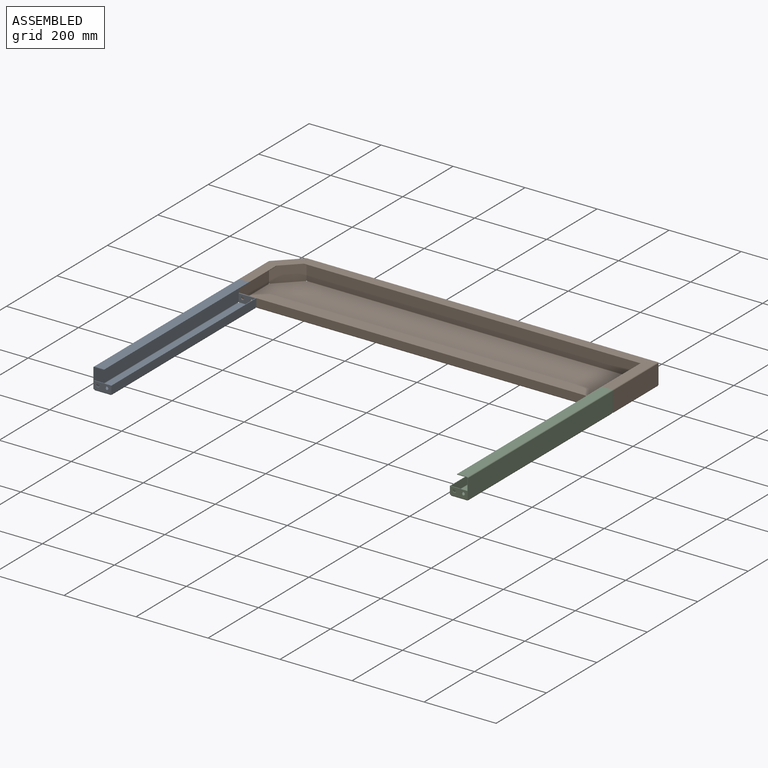
[diagram: assembled view]
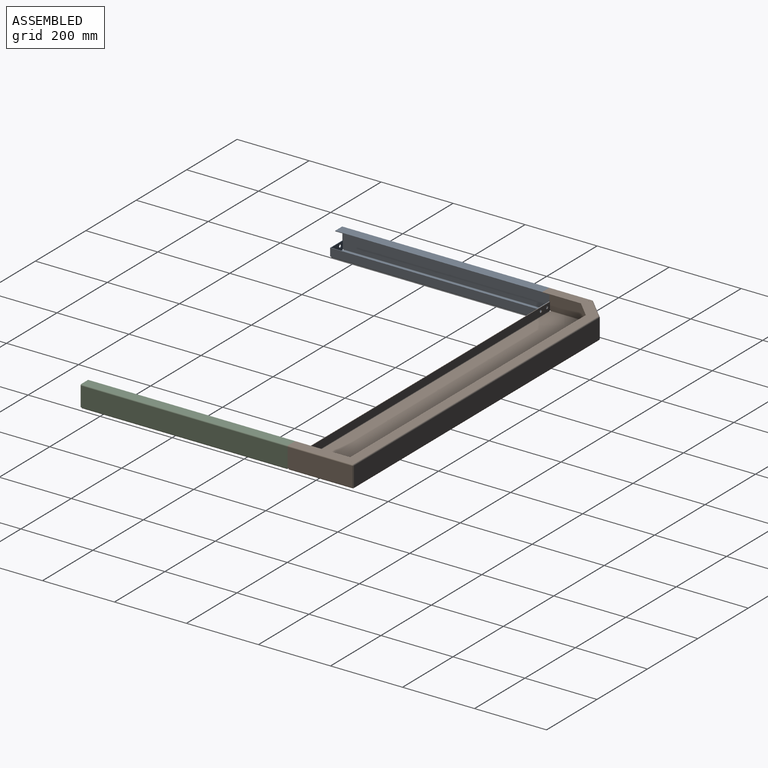
[diagram: assembled view, second angle]
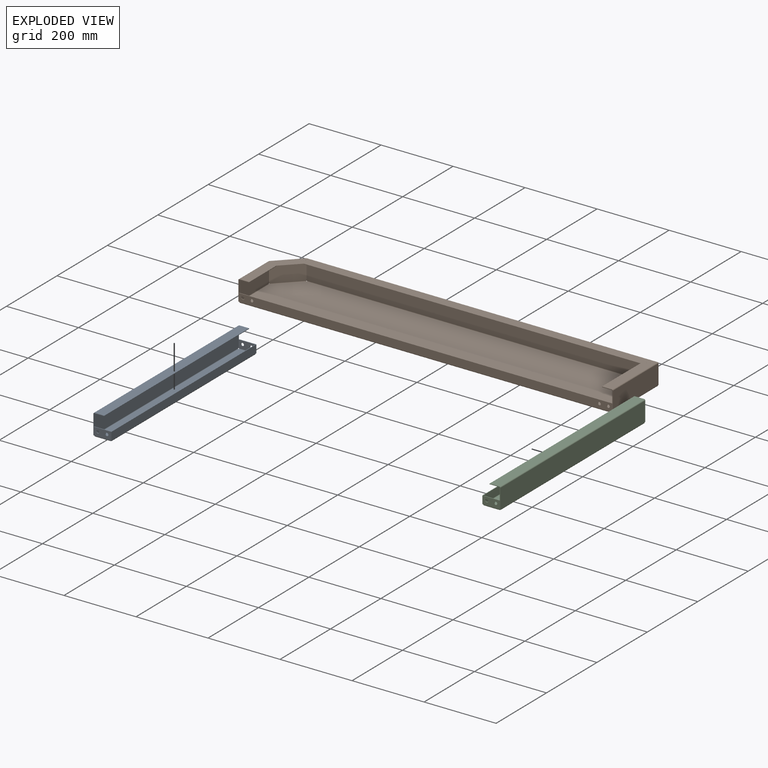
[diagram: exploded view]
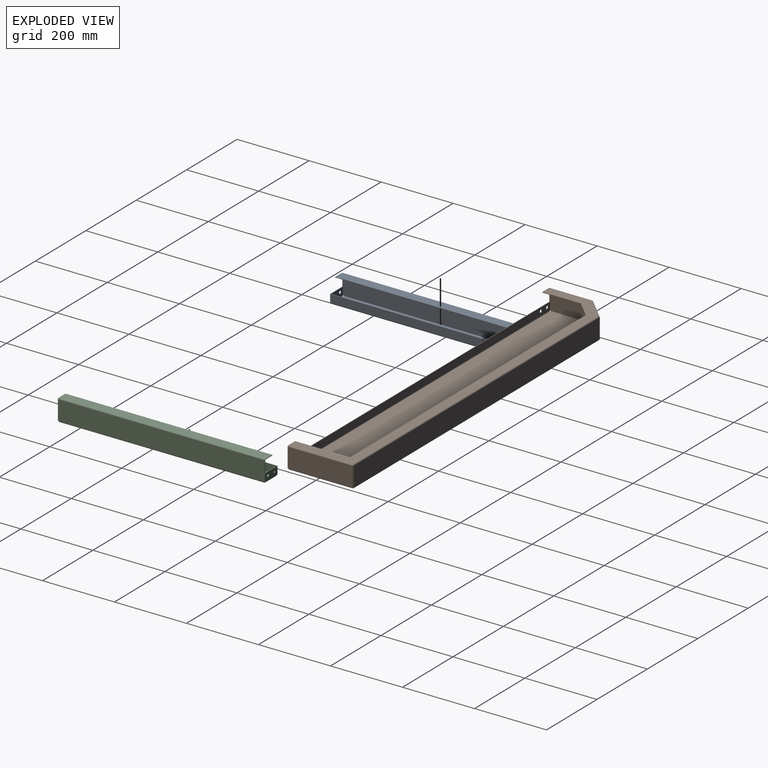
[diagram: exploded view, second angle]
ASSEMBLY  parts=3 mates=6
PART A: 58 faces, bbox 50x575x60 mm
  f0: plane 3x1.5mm, normal (0,0,-1), area 4.5mm2, adj f1,f5,f6,f55
  f1: plane 22x1.5mm, normal (0,1,0), area 33mm2, adj f0,f4,f5,f6
  f2: plane 3x1.5mm, normal (0,0,-1), area 4.5mm2, adj f3,f5,f6,f54
  f3: plane 22x1.5mm, normal (0,-1,0), area 33mm2, adj f2,f4,f5,f6
  f4: plane 575x1.5mm, normal (0,0,1), area 862.5mm2, adj f1,f3,f5,f6
  f5: plane 575x22mm, normal (-1,0,0), area 12650mm2, adj f0,f1,f2,f3,f4,f56
  f6: plane 575x22mm, normal (1,0,0), area 12650mm2, adj f0,f1,f2,f3,f4,f57
  f7: plane 569x44mm, normal (0,0,-1), area 25036mm2, adj f26,f39,f52,f56
  f8: plane 569x44mm, normal (0,0,1), area 25036mm2, adj f27,f40,f53,f57
  f9: plane 3x1.5mm, normal (0,0,-1), area 4.5mm2, adj f11,f13,f14,f24
  f10: plane 54x1.5mm, normal (0,1,0), area 81mm2, adj f12,f13,f14,f21
  f11: plane 54x1.5mm, normal (0,-1,0), area 81mm2, adj f9,f13,f14,f20
  f12: plane 3x1.5mm, normal (0,0,-1), area 4.5mm2, adj f10,f13,f14,f25
  f13: plane 575x54mm, normal (1,0,0), area 31050mm2, adj f9,f10,f11,f12,f22,f26
  f14: plane 575x54mm, normal (-1,0,0), area 31050mm2, adj f9,f10,f11,f12,f23,f27
  f15: plane 27x1.5mm, normal (0,1,0), area 40.5mm2, adj f16,f18,f19,f21
  f16: plane 575x1.5mm, normal (-1,0,0), area 862.5mm2, adj f15,f17,f18,f19
  f17: plane 27x1.5mm, normal (0,-1,0), area 40.5mm2, adj f16,f18,f19,f20
  f18: plane 575x27mm, normal (0,0,1), area 15525mm2, adj f15,f16,f17,f22
  f19: plane 575x27mm, normal (0,0,-1), area 15525mm2, adj f15,f16,f17,f23
  f20: plane 3x3mm, normal (0,-1,0), area 5.3mm2, adj f11,f17,f22,f23
  f21: plane 3x3mm, normal (0,1,0), area 5.3mm2, adj f10,f15,f22,f23
  f22: cylinder r=3mm len=575mm, axis (0,-1,0), area 2709.6mm2, adj f13,f18,f20,f21
  f23: cylinder r=1.5mm len=575mm, axis (0,-1,0), area 1354.8mm2, adj f14,f19,f20,f21
  f24: plane 3x3mm, normal (0,-1,0), area 5.3mm2, adj f9,f26,f27,f50
  f25: plane 3x3mm, normal (0,1,0), area 5.3mm2, adj f12,f26,f27,f37
  f26: cylinder r=3mm len=569mm, axis (0,-1,0), area 2681.3mm2, adj f7,f13,f24,f25
  f27: cylinder r=1.5mm len=569mm, axis (0,-1,0), area 1340.7mm2, adj f8,f14,f24,f25
  f28: plane 1.5x1.2mm, normal (0,0,-1), area 1.8mm2, adj f30,f35,f36,f37
  f29: plane 46.4x1.5mm, normal (0,0,1), area 69.6mm2, adj f30,f34,f35,f36
  f30: plane 22x1.5mm, normal (1,0,0), area 33mm2, adj f28,f29,f35,f36
  f31: plane 1.5x1.2mm, normal (0,0,-1), area 1.8mm2, adj f34,f35,f36,f38
  f32: cylinder r=4mm len=8mm, axis (0,1,0), area 37.7mm2, adj f35,f36
  f33: cylinder r=4mm len=8mm, axis (0,1,0), area 37.7mm2, adj f35,f36
  f34: plane 22x1.5mm, normal (-1,0,0), area 33mm2, adj f29,f31,f35,f36
  f35: plane 46.4x22mm, normal (0,1,0), area 920.3mm2, adj f28,f29,f30,f31,f32,f33,f34,f39
  f36: plane 46.4x22mm, normal (0,-1,0), area 920.3mm2, adj f28,f29,f30,f31,f32,f33,f34,f40
  f37: plane 3x3mm, normal (1,0,0), area 5.3mm2, adj f25,f28,f39,f40
  f38: plane 3x3mm, normal (-1,0,0), area 5.3mm2, adj f31,f39,f40,f55
  f39: cylinder r=3mm len=44mm, axis (1,0,0), area 207.3mm2, adj f7,f35,f37,f38
  f40: cylinder r=1.5mm len=44mm, axis (1,0,0), area 103.7mm2, adj f8,f36,f37,f38
  f41: plane 1.5x1.2mm, normal (0,0,-1), area 1.8mm2, adj f43,f48,f49,f51
  f42: plane 46.4x1.5mm, normal (0,0,1), area 69.6mm2, adj f43,f47,f48,f49
  f43: plane 22x1.5mm, normal (-1,0,0), area 33mm2, adj f41,f42,f48,f49
  f44: plane 1.5x1.2mm, normal (0,0,-1), area 1.8mm2, adj f47,f48,f49,f50
  f45: cylinder r=4mm len=8mm, axis (0,-1,0), area 37.7mm2, adj f48,f49
  f46: cylinder r=4mm len=8mm, axis (0,-1,0), area 37.7mm2, adj f48,f49
  f47: plane 22x1.5mm, normal (1,0,0), area 33mm2, adj f42,f44,f48,f49
  f48: plane 46.4x22mm, normal (0,-1,0), area 920.3mm2, adj f41,f42,f43,f44,f45,f46,f47,f52
  f49: plane 46.4x22mm, normal (0,1,0), area 920.3mm2, adj f41,f42,f43,f44,f45,f46,f47,f53
  f50: plane 3x3mm, normal (1,0,0), area 5.3mm2, adj f24,f44,f52,f53
  f51: plane 3x3mm, normal (-1,0,0), area 5.3mm2, adj f41,f52,f53,f54
  f52: cylinder r=3mm len=44mm, axis (1,0,0), area 207.3mm2, adj f7,f48,f50,f51
  f53: cylinder r=1.5mm len=44mm, axis (1,0,0), area 103.7mm2, adj f8,f49,f50,f51
  f54: plane 3x3mm, normal (0,-1,0), area 5.3mm2, adj f2,f51,f56,f57
  f55: plane 3x3mm, normal (0,1,0), area 5.3mm2, adj f0,f38,f56,f57
  f56: cylinder r=3mm len=569mm, axis (0,-1,0), area 2681.3mm2, adj f5,f7,f54,f55
  f57: cylinder r=1.5mm len=569mm, axis (0,-1,0), area 1340.7mm2, adj f6,f8,f54,f55
PART B: 99 faces, bbox 1040x182.5x60 mm
  f0: plane 1034x176.5mm, normal (0,0,-1), area 180662.2mm2, adj f13,f21,f31,f73,f97
  f1: plane 1034x176.5mm, normal (0,0,1), area 180662.2mm2, adj f14,f22,f32,f74,f98
  f2: plane 1.5x0.61mm, normal (0,0,-1), area 0.9mm2, adj f5,f9,f10,f12
  f3: plane 1.5x0.02mm, normal (0,0,-1), area 0mm2, adj f4,f8,f9,f10
  f4: plane 32x1.5mm, normal (0,-1,0), area 48mm2, adj f3,f9,f10,f16
  f5: plane 54x1.5mm, normal (0,1,0), area 81mm2, adj f2,f9,f10,f15
  f6: plane 1.5x1.5mm, normal (0,0,-1), area 2.3mm2, adj f7,f9,f10,f11
  f7: plane 1.5x1.48mm, normal (0,0,-1), area 2.2mm2, adj f6,f8,f9,f10
  f8: plane 22x1.5mm, normal (0,-1,0), area 33mm2, adj f3,f7,f9,f10
  f9: plane 119.47x54mm, normal (-1,0,0), area 6450.8mm2, adj f2,f3,f4,f5,f6,f7,f8,f13
  f10: plane 119.47x54mm, normal (1,0,0), area 6450.8mm2, adj f2,f3,f4,f5,f6,f7,f8,f14
  f11: plane 3x3mm, normal (0,-1,0), area 5.3mm2, adj f6,f13,f14,f96
  f12: plane 3x3mm, normal (0,1,0), area 5.3mm2, adj f2,f13,f14,f19
  f13: cylinder r=3mm len=115.86mm, axis (0,-1,0), area 546mm2, adj f0,f9,f11,f12
  f14: cylinder r=1.5mm len=115.86mm, axis (0,-1,0), area 273mm2, adj f1,f10,f11,f12
  f15: bspline ~3x3mm, area 5.4mm2, adj f5,f17,f18,f34
  f16: bspline ~3x3mm, area 5.3mm2, adj f4,f17,f18,f35
  f17: cylinder r=3mm len=119.47mm, axis (0,1,0), area 561.9mm2, adj f9,f15,f16,f36
  f18: cylinder r=1.5mm len=119.47mm, axis (0,1,0), area 280.9mm2, adj f10,f15,f16,f37
  f19: plane 3x2.12mm, normal (-0.71,-0.71,0), area 5.3mm2, adj f12,f21,f22,f25
  f20: plane 3x2.12mm, normal (0.71,0.71,0), area 5.3mm2, adj f21,f22,f23,f71
  f21: cylinder r=3mm len=62.76mm, axis (-0.71,-0.71,0), area 404.1mm2, adj f0,f19,f20,f27
  f22: cylinder r=1.5mm len=61.7mm, axis (-0.71,-0.71,0), area 202.1mm2, adj f1,f19,f20,f28
  f23: plane 1.49x1.49mm, normal (0,0,-1), area 0.9mm2, adj f20,f24,f27,f28
  f24: plane 54x1.06mm, normal (0.71,0.71,0), area 81mm2, adj f23,f27,f28,f38
  f25: plane 1.49x1.49mm, normal (0,0,-1), area 0.9mm2, adj f19,f26,f27,f28
  f26: plane 54x1.06mm, normal (-0.71,-0.71,0), area 81mm2, adj f25,f27,f28,f39
  f27: plane 61.5x61.5mm, normal (-0.71,0.71,0), area 4697mm2, adj f21,f23,f24,f25,f26,f40
  f28: plane 61.5x61.5mm, normal (0.71,-0.71,0), area 4697mm2, adj f22,f23,f24,f25,f26,f41
  f29: plane 3x3mm, normal (0,1,0), area 5.3mm2, adj f31,f32,f48,f72
  f30: plane 3x3mm, normal (0,-1,0), area 5.3mm2, adj f31,f32,f42,f95
  f31: cylinder r=3mm len=176.5mm, axis (0,1,0), area 831.7mm2, adj f0,f29,f30,f49
  f32: cylinder r=1.5mm len=176.5mm, axis (0,1,0), area 415.9mm2, adj f1,f29,f30,f50
  f33: plane 107.64x1.5mm, normal (1,0,0), area 161.5mm2, adj f34,f35,f36,f37
  f34: plane 27x11.18mm, normal (0.38,0.92,0), area 43.8mm2, adj f15,f33,f36,f37
  f35: plane 27x1.5mm, normal (0,-1,0), area 40.5mm2, adj f16,f33,f36,f37
  f36: plane 118.83x27mm, normal (0,0,1), area 3057.3mm2, adj f17,f33,f34,f35
  f37: plane 118.83x27mm, normal (0,0,-1), area 3057.3mm2, adj f18,f33,f34,f35
  f38: bspline ~3x2.56mm, area 5.4mm2, adj f24,f40,f41,f52
  f39: bspline ~3x2.56mm, area 5.4mm2, adj f26,f40,f41,f53
  f40: cylinder r=3mm len=63.63mm, axis (0.71,0.71,0), area 407mm2, adj f27,f38,f39,f54
  f41: cylinder r=1.5mm len=62.57mm, axis (0.71,0.71,0), area 203.5mm2, adj f28,f38,f39,f55
  f42: plane 1.5x1.5mm, normal (0,0,-1), area 2.3mm2, adj f30,f47,f49,f50
  f43: plane 54x1.5mm, normal (0,1,0), area 81mm2, adj f48,f49,f50,f57
  f44: plane 32x1.5mm, normal (0,-1,0), area 48mm2, adj f45,f49,f50,f56
  f45: plane 1.5x0.02mm, normal (0,0,-1), area 0mm2, adj f44,f46,f49,f50
  f46: plane 22x1.5mm, normal (0,-1,0), area 33mm2, adj f45,f47,f49,f50
  f47: plane 1.5x1.48mm, normal (0,0,-1), area 2.2mm2, adj f42,f46,f49,f50
  f48: plane 1.5x1.48mm, normal (0,0,-1), area 2.2mm2, adj f29,f43,f49,f50
  f49: plane 180.98x54mm, normal (1,0,0), area 9772.5mm2, adj f31,f42,f43,f44,f45,f46,f47,f48
  f50: plane 180.98x54mm, normal (-1,0,0), area 9772.5mm2, adj f32,f42,f43,f44,f45,f46,f47,f48
  f51: plane 44.81x44.81mm, normal (0.71,-0.71,0), area 95.1mm2, adj f52,f53,f54,f55
  f52: plane 27x11.18mm, normal (0.92,0.38,0), area 43.8mm2, adj f38,f51,f54,f55
  f53: plane 27x11.18mm, normal (-0.38,-0.92,0), area 43.8mm2, adj f39,f51,f54,f55
  f54: plane 71.81x71.81mm, normal (0,0,1), area 2013mm2, adj f40,f51,f52,f53
  f55: plane 71.81x71.81mm, normal (0,0,-1), area 2013mm2, adj f41,f51,f52,f53
  f56: bspline ~3x3mm, area 5.3mm2, adj f44,f58,f59,f61
  f57: bspline ~3x3mm, area 5.9mm2, adj f43,f58,f59,f62
  f58: cylinder r=3mm len=180.98mm, axis (0,-1,0), area 850.2mm2, adj f49,f56,f57,f63
  f59: cylinder r=1.5mm len=180.98mm, axis (0,-1,0), area 425.1mm2, adj f50,f56,f57,f64
  f60: plane 152.47x1.5mm, normal (-1,0,0), area 228.7mm2, adj f61,f62,f63,f64
  f61: plane 27x1.5mm, normal (0,-1,0), area 40.5mm2, adj f56,f60,f63,f64
  f62: plane 27x27mm, normal (-0.71,0.71,0), area 57.3mm2, adj f57,f60,f63,f64
  f63: plane 179.47x27mm, normal (0,0,1), area 4481.1mm2, adj f58,f60,f61,f62
  f64: plane 179.47x27mm, normal (0,0,-1), area 4481.1mm2, adj f59,f60,f61,f62
  f65: plane 1.5x1.48mm, normal (0,0,-1), area 2.2mm2, adj f66,f69,f70,f72
  f66: plane 54x1.5mm, normal (1,0,0), area 81mm2, adj f65,f69,f70,f75
  f67: plane 1.5x0.61mm, normal (0,0,-1), area 0.9mm2, adj f68,f69,f70,f71
  f68: plane 54x1.5mm, normal (-1,0,0), area 81mm2, adj f67,f69,f70,f76
  f69: plane 975.45x54mm, normal (0,1,0), area 52674.1mm2, adj f65,f66,f67,f68,f73,f77
  f70: plane 975.45x54mm, normal (0,-1,0), area 52674.1mm2, adj f65,f66,f67,f68,f74,f78
  f71: plane 3x3mm, normal (-1,0,0), area 5.3mm2, adj f20,f67,f73,f74
  f72: plane 3x3mm, normal (1,0,0), area 5.3mm2, adj f29,f65,f73,f74
  f73: cylinder r=3mm len=973.36mm, axis (-1,0,0), area 4586.8mm2, adj f0,f69,f71,f72
  f74: cylinder r=1.5mm len=973.36mm, axis (-1,0,0), area 2293.4mm2, adj f1,f70,f71,f72
  f75: bspline ~3x3mm, area 5.9mm2, adj f66,f77,f78,f80
  f76: bspline ~3x3mm, area 5.4mm2, adj f68,f77,f78,f81
  f77: cylinder r=3mm len=975.45mm, axis (1,0,0), area 4592.7mm2, adj f69,f75,f76,f82
  f78: cylinder r=1.5mm len=975.45mm, axis (1,0,0), area 2296.3mm2, adj f70,f75,f76,f83
  f79: plane 935.15x1.5mm, normal (0,-1,0), area 1402.7mm2, adj f80,f81,f82,f83
  f80: plane 27x27mm, normal (0.71,-0.71,0), area 57.3mm2, adj f75,f79,f82,f83
  f81: plane 27x11.18mm, normal (-0.92,-0.38,0), area 43.8mm2, adj f76,f79,f82,f83
  f82: plane 973.33x27mm, normal (0,0,1), area 25764.5mm2, adj f77,f79,f80,f81
  f83: plane 973.33x27mm, normal (0,0,-1), area 25764.5mm2, adj f78,f79,f80,f81
  f84: plane 1.5x1.48mm, normal (0,0,-1), area 2.2mm2, adj f86,f93,f94,f96
  f85: plane 1036.96x1.5mm, normal (0,0,1), area 1555.4mm2, adj f86,f92,f93,f94
  f86: plane 22x1.5mm, normal (-1,0,0), area 33mm2, adj f84,f85,f93,f94
  f87: plane 1.5x1.48mm, normal (0,0,-1), area 2.2mm2, adj f92,f93,f94,f95
  f88: cylinder r=4mm len=8mm, axis (0,-1,0), area 37.7mm2, adj f93,f94
  f89: cylinder r=4mm len=8mm, axis (0,-1,0), area 37.7mm2, adj f93,f94
  f90: cylinder r=4mm len=8mm, axis (0,-1,0), area 37.7mm2, adj f93,f94
  f91: cylinder r=4mm len=8mm, axis (0,-1,0), area 37.7mm2, adj f93,f94
  f92: plane 22x1.5mm, normal (1,0,0), area 33mm2, adj f85,f87,f93,f94
  f93: plane 1036.96x22mm, normal (0,-1,0), area 22612.1mm2, adj f84,f85,f86,f87,f88,f89,f90,f91
  f94: plane 1036.96x22mm, normal (0,1,0), area 22612.1mm2, adj f84,f85,f86,f87,f88,f89,f90,f91
  f95: plane 3x3mm, normal (1,0,0), area 5.3mm2, adj f30,f87,f97,f98
  f96: plane 3x3mm, normal (-1,0,0), area 5.3mm2, adj f11,f84,f97,f98
  f97: cylinder r=3mm len=1034mm, axis (1,0,0), area 4872.6mm2, adj f0,f93,f95,f96
  f98: cylinder r=1.5mm len=1034mm, axis (1,0,0), area 2436.3mm2, adj f1,f94,f95,f96
PART C: same geometry as A
PLACE A rot(axis=(0,0,1),180deg) t=(-1012.19,-607.21,52.81)mm
PLACE B t=(27.81,-319.71,52.81)mm fixed
PLACE C t=(27.81,-607.21,52.81)mm
MATE planar A.f7 <-> B.f0  axis (0,0,-1) through (-987.19,-607.21,52.81)mm
MATE planar C.f13 <-> B.f49  axis (1,0,0) through (27.81,-607.21,82.81)mm
MATE planar C.f35 <-> B.f93  axis (0,1,0) through (2.81,-319.71,66.7)mm
MATE planar A.f13 <-> B.f9  axis (-1,0,0) through (-1012.19,-607.21,82.81)mm
MATE planar A.f48 <-> B.f93  axis (0,1,0) through (-987.19,-319.71,77.81)mm
MATE planar C.f7 <-> B.f0  axis (0,0,-1) through (2.81,-607.21,52.81)mm
